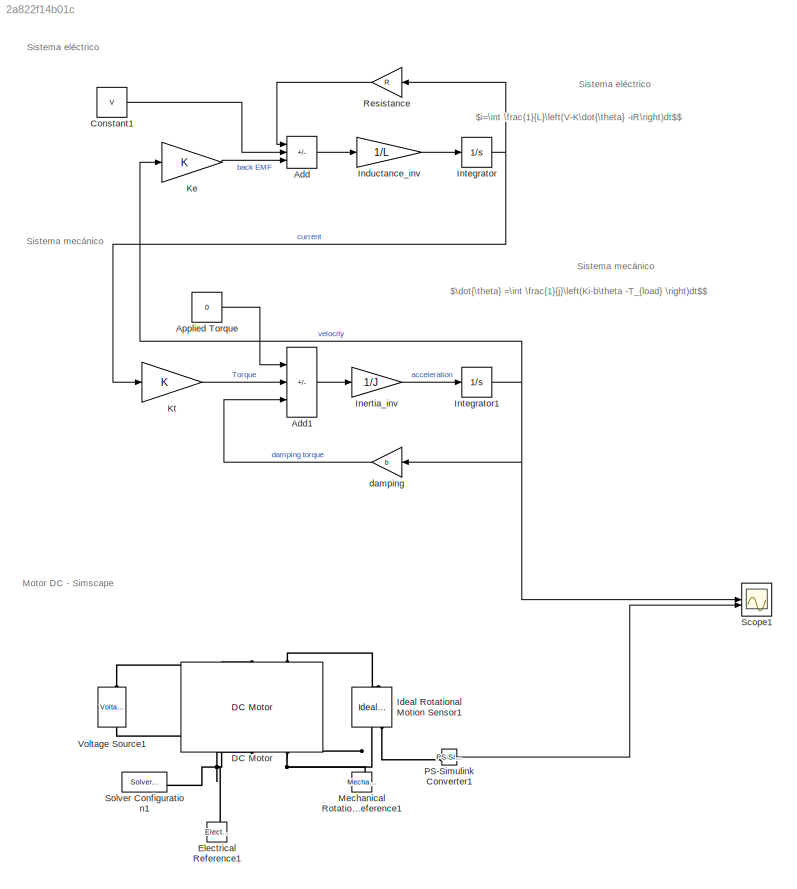
MODEL slx_2a822f14b01c
KIND model
CONFIG AbsTol = auto
CONFIG EnableMultiTasking = off
CONFIG FixedStep = auto
CONFIG MaxStep = auto
CONFIG MinStep = auto
CONFIG PreLoadFcn = load("properties.mat");
CONFIG RelTol = 1e-3
CONFIG SampleTimeConstraint = Unconstrained
CONFIG SolverName = VariableStepAuto
CONFIG StartTime = 0.0
CONFIG StopTime = 10.0
BLOCK [Sum] Add
  IconShape = rectangular
  Inputs = -+-
BLOCK [Sum] Add1
  IconShape = rectangular
  Inputs = ++-
BLOCK [Constant] Applied Torque
  Value = 0
BLOCK [Constant] Constant1
  Value = V
BLOCK [Reference] DC Motor  REF=ee_lib/Electromechanical/Brushed Motors/DC Motor
  NameLocation = right
  SourceBlock = ee_lib/Electromechanical/Brushed Motors/DC Motor
  SourceType = DC Motor
BLOCK [Reference] Electrical Reference1  REF=fl_lib/Electrical/Electrical Elements/Electrical Reference
  NameLocation = right
  SourceBlock = fl_lib/Electrical/Electrical Elements/Electrical Reference
  SourceType = Electrical Reference
BLOCK [Reference] Ideal Rotational Motion Sensor1  REF=fl_lib/Mechanical/Mechanical Sensors/Ideal Rotational
Motion Sensor
  NameLocation = left
  SourceBlock = fl_lib/Mechanical/Mechanical Sensors/Ideal Rotational\nMotion Sensor
  SourceType = Ideal Rotational\nMotion Sensor
BLOCK [Gain] Inductance_inv
  Gain = 1/L
BLOCK [Gain] Inertia_inv
  Gain = 1/J
BLOCK [Integrator] Integrator
BLOCK [Integrator] Integrator1
BLOCK [Gain] Ke
  Gain = K
BLOCK [Gain] Kt
  Gain = K
BLOCK [Reference] Mechanical Rotational Reference1  REF=fl_lib/Mechanical/Rotational Elements/Mechanical
Rotational Reference
  NameLocation = right
  SourceBlock = fl_lib/Mechanical/Rotational Elements/Mechanical\nRotational Reference
  SourceType = Mechanical\nRotational Reference
BLOCK [Reference] PS-Simulink Converter1  REF=nesl_utility/PS-Simulink
Converter
  SourceBlock = nesl_utility/PS-Simulink\nConverter
  SourceType = PS-Simulink\nConverter
BLOCK [Gain] Resistance
  Gain = R
BLOCK [Scope] Scope1
  Floating = off
  NumInputPorts = 2
  ScopeSpecificationString = Simulink.scopes.TimeScopeBlockCfg('CurrentConfiguration', extmgr.ConfigurationSet(extmgr.Configuration('Core','General UI',true,'FigureColor',[0.129411764705882 0.129411764705882 0.129411764705882]),extmgr.Configuration('Core','Source UI',true),extmgr.Configuration('Sources','WiredSimulink',true,'DataLoggingVariableName','ScopeData1'),extmgr.Configuration('Visuals','Time Domain',true,'SerializedDi...<+1875ch>
BLOCK [Reference] Solver Configuration1  REF=nesl_utility/Solver
Configuration
  SourceBlock = nesl_utility/Solver\nConfiguration
  SourceType = Solver\nConfiguration
BLOCK [Reference] Voltage Source1  REF=ee_lib/Sources/Voltage Source
  NameLocation = right
  SourceBlock = ee_lib/Sources/Voltage Source
  SourceType = Voltage Source
BLOCK [Gain] damping
  Gain = b
ANNOTATION (root): Sistema eléctrico
ANNOTATION (root): Sistema mecánico
ANNOTATION (root): $\dot{\theta} =\int \frac{1}{j}\left(Ki-b\theta -T_{load} \right)dt$$
ANNOTATION (root): $i=\int \frac{1}{L}\left(V-K\dot{\theta} -iR\right)dt$$
ANNOTATION (root): Motor DC - Simscape
LINE Add1:1 -> Inertia_inv:1
LINE Add:1 -> Inductance_inv:1
LINE Applied Torque:1 -> Add1:1
LINE Constant1:1 -> Add:2
LINE Inductance_inv:1 -> Integrator:1
LINE Inertia_inv:1 -> Integrator1:1
NET Integrator1:1 -> Ke:1, Scope1:1, damping:1
NET Integrator:1 -> Kt:1, Resistance:1
LINE Ke:1 -> Add:3
LINE Kt:1 -> Add1:2
LINE PS-Simulink Converter1:1 -> Scope1:2
LINE Resistance:1 -> Add:1
LINE damping:1 -> Add1:3
PLINE DC Motor:LConn1 -- Voltage Source1:LConn1
PLINE DC Motor:LConn2 -- Ideal Rotational Motion Sensor1:LConn1
PNET net1: DC Motor:RConn1 -- Electrical Reference1:LConn1 -- Solver Configuration1:RConn1 -- Voltage Source1:RConn1
PNET net2: DC Motor:RConn2 -- Ideal Rotational Motion Sensor1:RConn1 -- Mechanical Rotational Reference1:LConn1
PLINE Ideal Rotational Motion Sensor1:RConn2 -- PS-Simulink Converter1:LConn1
note: NET lines group one-source signal fan-out (src -> all destinations, sorted); 1:1 wires keep LINE; PNET lines group multi-terminal physical nets as a canonical sorted terminal list (undirected conserving connections); 2-terminal nets keep the pairwise PLINE form
